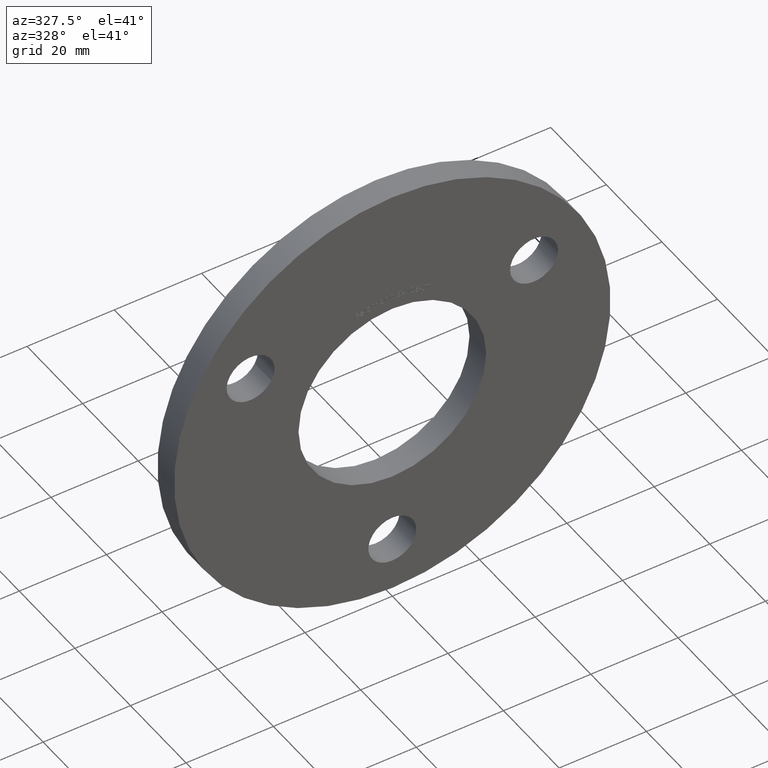
[diagram: clean part render]
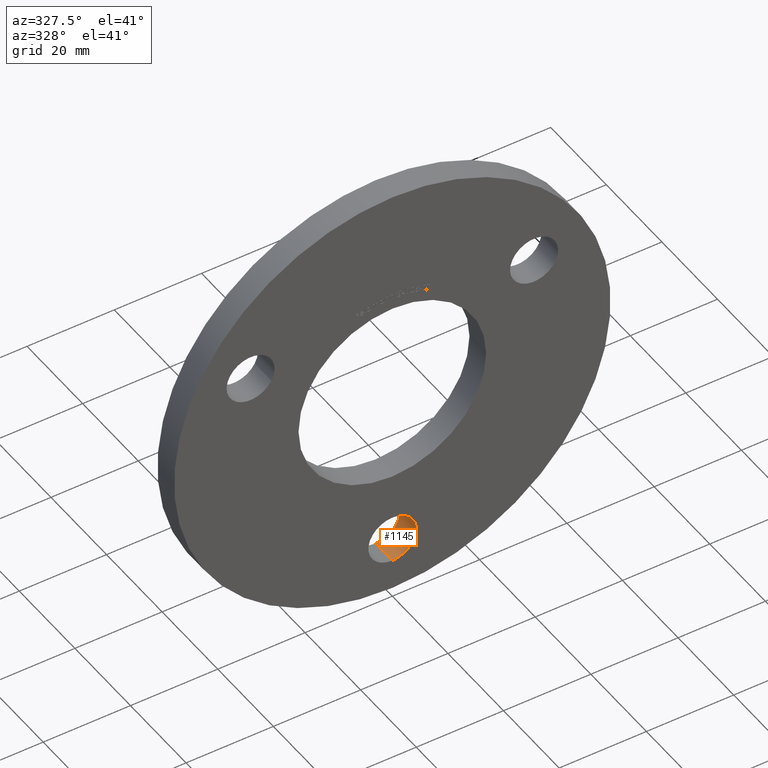
[diagram: same view with one face highlighted and labeled with its STEP entity id]
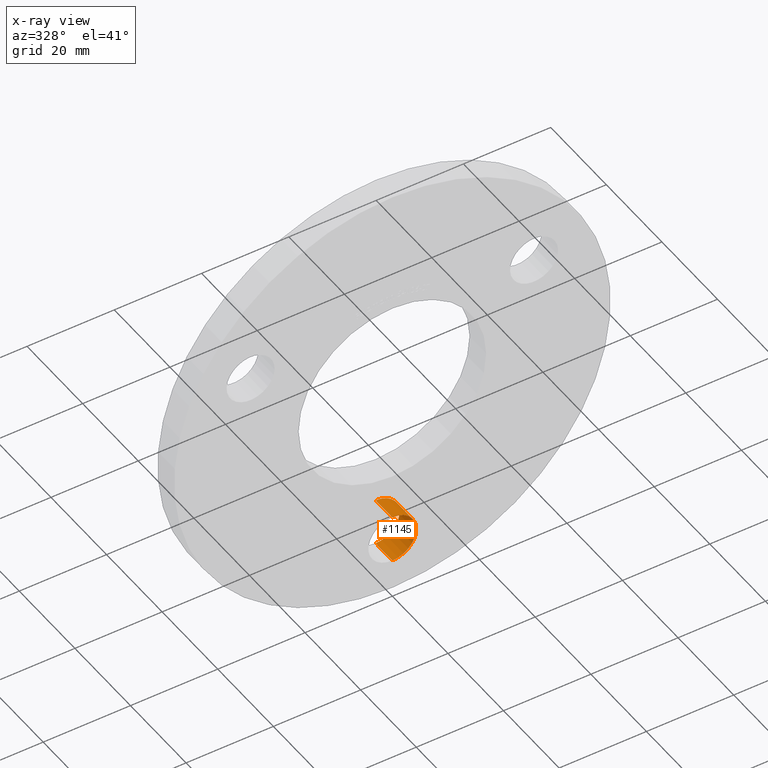
[diagram: x-ray of the same camera — body ghosted, the highlighted face saturated]
A machine part, auxiliary view. The second image highlights one B-rep face of the part: STEP entity #1145.
The next image is the same camera in x-ray: the body ghosted, the highlighted face saturated — about 0% of this face is hidden behind the body in this view.
In plain terms, the highlighted cylindrical surface (edge-blend (fillet) strip) has radius 5.5 mm, axis along (-0, 1, -0).
Its self-contained STEP definition (entity closure, byte-faithful):
#647 = LINE ( 'NONE', #9958, #1203 ) ;
#756 = EDGE_CURVE ( 'NONE', #1602, #9976, #2335, .T. ) ;
#769 = CIRCLE ( 'NONE', #11097, 5.499999999999998200 ) ;
#799 = CARTESIAN_POINT ( 'NONE',  ( 0.0000000000000000000, 6.000000000000000000, -37.50000000000000000 ) ) ;
#984 = ORIENTED_EDGE ( 'NONE', *, *, #6753, .F. ) ;
#1061 = DIRECTION ( 'NONE',  ( 0.0000000000000000000, 0.0000000000000000000, 1.000000000000000000 ) ) ;
#1145 = ADVANCED_FACE ( 'NONE', ( #10902 ), #2887, .F. ) ;
#1203 = VECTOR ( 'NONE', #8274, 1000.000000000000000 ) ;
#1602 = VERTEX_POINT ( 'NONE', #7345 ) ;
#1641 = DIRECTION ( 'NONE',  ( -0.0000000000000000000, 1.000000000000000000, -0.0000000000000000000 ) ) ;
#1721 = VERTEX_POINT ( 'NONE', #2900 ) ;
#2335 = LINE ( 'NONE', #3610, #5646 ) ;
#2887 = CYLINDRICAL_SURFACE ( 'NONE', #10278, 5.499999999999998200 ) ;
#2900 = CARTESIAN_POINT ( 'NONE',  ( 6.735557395310443000E-016, 6.000000000000000000, -43.00000000000000000 ) ) ;
#3363 = CARTESIAN_POINT ( 'NONE',  ( 0.0000000000000000000, 0.0000000000000000000, -37.50000000000000000 ) ) ;
#3377 = ORIENTED_EDGE ( 'NONE', *, *, #756, .T. ) ;
#3610 = CARTESIAN_POINT ( 'NONE',  ( 0.0000000000000000000, 0.0000000000000000000, -32.00000000000000000 ) ) ;
#4401 = EDGE_CURVE ( 'NONE', #8053, #1721, #647, .T. ) ;
#4598 = CARTESIAN_POINT ( 'NONE',  ( 0.0000000000000000000, 6.000000000000000000, -32.00000000000000000 ) ) ;
#5514 = DIRECTION ( 'NONE',  ( -0.0000000000000000000, 1.000000000000000000, -0.0000000000000000000 ) ) ;
#5646 = VECTOR ( 'NONE', #5514, 1000.000000000000000 ) ;
#6499 = EDGE_LOOP ( 'NONE', ( #9030, #984, #3377, #6731 ) ) ;
#6731 = ORIENTED_EDGE ( 'NONE', *, *, #9241, .T. ) ;
#6753 = EDGE_CURVE ( 'NONE', #1602, #8053, #769, .T. ) ;
#6819 = AXIS2_PLACEMENT_3D ( 'NONE', #799, #10472, #11241 ) ;
#7080 = DIRECTION ( 'NONE',  ( 0.0000000000000000000, 1.000000000000000000, 0.0000000000000000000 ) ) ;
#7089 = CIRCLE ( 'NONE', #6819, 5.499999999999998200 ) ;
#7345 = CARTESIAN_POINT ( 'NONE',  ( 0.0000000000000000000, 0.0000000000000000000, -32.00000000000000000 ) ) ;
#8053 = VERTEX_POINT ( 'NONE', #9766 ) ;
#8274 = DIRECTION ( 'NONE',  ( -0.0000000000000000000, 1.000000000000000000, -0.0000000000000000000 ) ) ;
#8911 = DIRECTION ( 'NONE',  ( 0.0000000000000000000, 0.0000000000000000000, 1.000000000000000000 ) ) ;
#9030 = ORIENTED_EDGE ( 'NONE', *, *, #4401, .F. ) ;
#9241 = EDGE_CURVE ( 'NONE', #9976, #1721, #7089, .T. ) ;
#9766 = CARTESIAN_POINT ( 'NONE',  ( 6.735557395310443000E-016, 0.0000000000000000000, -43.00000000000000000 ) ) ;
#9958 = CARTESIAN_POINT ( 'NONE',  ( 6.735557395310441000E-016, 0.0000000000000000000, -43.00000000000000000 ) ) ;
#9976 = VERTEX_POINT ( 'NONE', #4598 ) ;
#10278 = AXIS2_PLACEMENT_3D ( 'NONE', #3363, #1641, #1061 ) ;
#10472 = DIRECTION ( 'NONE',  ( 0.0000000000000000000, 1.000000000000000000, 0.0000000000000000000 ) ) ;
#10902 = FACE_OUTER_BOUND ( 'NONE', #6499, .T. ) ;
#11097 = AXIS2_PLACEMENT_3D ( 'NONE', #11428, #7080, #8911 ) ;
#11241 = DIRECTION ( 'NONE',  ( 0.0000000000000000000, 0.0000000000000000000, 1.000000000000000000 ) ) ;
#11428 = CARTESIAN_POINT ( 'NONE',  ( 0.0000000000000000000, 0.0000000000000000000, -37.50000000000000000 ) ) ;